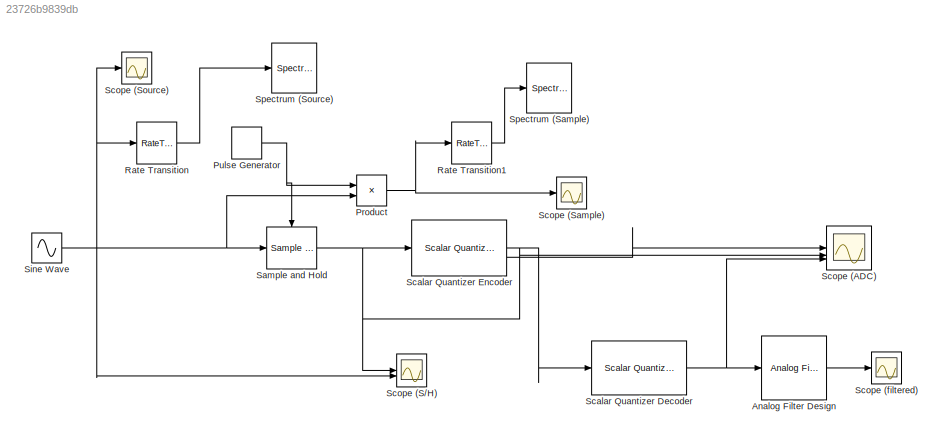
MODEL slx_23726b9839db
KIND model
CONFIG AbsTol = auto
CONFIG EnableMultiTasking = off
CONFIG FixedStep = auto
CONFIG MaxStep = auto
CONFIG MinStep = auto
CONFIG RelTol = 1e-3
CONFIG SampleTimeConstraint = Unconstrained
CONFIG SolverName = VariableStepAuto
CONFIG StartTime = 0.0
CONFIG StopTime = 10.0
BLOCK [Reference] Analog Filter Design  REF=dspfdesign/Analog
Filter Design
  SourceBlock = dspfdesign/Analog\nFilter Design
  SourceType = Analog Filter Design
BLOCK [Product] Product
BLOCK [DiscretePulseGenerator] Pulse Generator
  Period = 0.001/8
  PulseType = Time based
  PulseWidth = 50
BLOCK [RateTransition] Rate Transition
  OutPortSampleTime = 1e-5
BLOCK [RateTransition] Rate Transition1
  OutPortSampleTime = 1e-5
BLOCK [Reference] Sample and Hold  REF=dspsigops/Sample
and Hold
  SourceBlock = dspsigops/Sample\nand Hold
  SourceType = Sample and Hold
BLOCK [Reference] Scalar Quantizer Decoder  REF=dspquant2/Scalar Quantizer
Decoder
  SourceBlock = dspquant2/Scalar Quantizer\nDecoder
  SourceType = Scalar Quantizer Decoder
BLOCK [Reference] Scalar Quantizer Encoder  REF=dspquant2/Scalar Quantizer
Encoder
  SourceBlock = dspquant2/Scalar Quantizer\nEncoder
  SourceType = Scalar Quantizer Encoder
BLOCK [Scope] Scope (ADC)
  Floating = off
  NumInputPorts = 3
  ScopeSpecificationString = Simulink.scopes.TimeScopeBlockCfg('CurrentConfiguration', extmgr.ConfigurationSet(extmgr.Configuration('Core','General UI',true),extmgr.Configuration('Core','Source UI',true),extmgr.Configuration('Sources','WiredSimulink',true,'DataLoggingVariableName','ScopeData1'),extmgr.Configuration('Visuals','Time Domain',true,'SerializedDisplays',{struct('MinYLimReal','-2.5','MaxYLimReal','2.5','YLabelReal',...<+1648ch>
BLOCK [Scope] Scope (S//H)
  Floating = off
  NumInputPorts = 2
  ScopeSpecificationString = Simulink.scopes.TimeScopeBlockCfg('CurrentConfiguration', extmgr.ConfigurationSet(extmgr.Configuration('Core','General UI',true),extmgr.Configuration('Core','Source UI',true),extmgr.Configuration('Sources','WiredSimulink',true,'DataLoggingVariableName','ScopeData2'),extmgr.Configuration('Visuals','Time Domain',true,'SerializedDisplays',{struct('MinYLimReal','-2.5','MaxYLimReal','2.5','YLabelReal',...<+1499ch>
BLOCK [Scope] Scope (Sample)
  Floating = off
  NumInputPorts = 1
  ScopeSpecificationString = Simulink.scopes.TimeScopeBlockCfg('CurrentConfiguration', extmgr.ConfigurationSet(extmgr.Configuration('Core','General UI',true),extmgr.Configuration('Core','Source UI',true),extmgr.Configuration('Sources','WiredSimulink',true,'DataLoggingVariableName','ScopeData4'),extmgr.Configuration('Visuals','Time Domain',true,'SerializedDisplays',{struct('MinYLimReal','-2.5','MaxYLimReal','2.5','YLabelReal',...<+1431ch>
BLOCK [Scope] Scope (Source)
  Floating = off
  NumInputPorts = 1
  ScopeSpecificationString = Simulink.scopes.TimeScopeBlockCfg('CurrentConfiguration', extmgr.ConfigurationSet(extmgr.Configuration('Core','General UI',true),extmgr.Configuration('Core','Source UI',true),extmgr.Configuration('Sources','WiredSimulink',true),extmgr.Configuration('Visuals','Time Domain',true),extmgr.Configuration('Tools','Plot Navigation',true),extmgr.Configuration('Tools','Measurements',true)),'Version','2024a'...<+1ch>
BLOCK [Scope] Scope (filtered)
  Floating = off
  NumInputPorts = 1
  ScopeSpecificationString = Simulink.scopes.TimeScopeBlockCfg('CurrentConfiguration', extmgr.ConfigurationSet(extmgr.Configuration('Core','General UI',true),extmgr.Configuration('Core','Source UI',true),extmgr.Configuration('Sources','WiredSimulink',true,'DataLoggingVariableName','ScopeData3'),extmgr.Configuration('Visuals','Time Domain',true),extmgr.Configuration('Tools','Plot Navigation',true),extmgr.Configuration('Tools',...<+40ch>
BLOCK [Sin] Sine Wave
  Amplitude = 2
  Frequency = 500*2*pi
  SampleTime = 0
BLOCK [SpectrumAnalyzer] Spectrum (Sample)
  GraphicalSettings = {"GraphicalSettings":{"Style":{"BackgroundColor":[0.12941176470588237,0.12941176470588237,0.12941176470588237],"AxesColor":[0.07058823529411765,0.07058823529411765,0.07058823529411765],"LabelsColor":[0.8509803921568627,0.8509803921568627,0.8509803921568627],"PreserveColors":false,"Visible":[true],"LineStyle":["-"],"LineColor":[[1,0.9098039215686274,0.39215686274509803]],"LineWidth":[1.5],"Marker":...<+946ch>
  ScopeFrameLocation = window
  Span = 99999.99999999999
  StartFrequency = -49999.99999999999
  StopFrequency = 49999.99999999999
  WasSavedAsWebScope = on
  WindowPosition = [-36.000000,-78.000000,1099.000000,596.000000,]
  YLimits = [-229.38580018,52.50960302]
BLOCK [SpectrumAnalyzer] Spectrum (Source) 
  GraphicalSettings = {"GraphicalSettings":{"Style":{"BackgroundColor":[0.12941176470588237,0.12941176470588237,0.12941176470588237],"AxesColor":[0.07058823529411765,0.07058823529411765,0.07058823529411765],"LabelsColor":[0.8509803921568627,0.8509803921568627,0.8509803921568627],"PreserveColors":false,"Visible":[true],"LineStyle":["-"],"LineColor":[[1,0.9098039215686274,0.39215686274509803]],"LineWidth":[1.5],"Marker":...<+946ch>
  ScopeFrameLocation = window
  WasSavedAsWebScope = on
  WindowPosition = [-7.000000,-27.000000,1099.000000,596.000000,]
  YLimits = [-262.76280778,62.52919623]
LINE Analog Filter Design:1 -> Scope (filtered):1
NET Product:1 -> Rate Transition1:1, Scope (Sample):1
NET Pulse Generator:1 -> Product:1, Sample and Hold:trigger
LINE Rate Transition1:1 -> Spectrum (Sample):1
LINE Rate Transition:1 -> Spectrum (Source) :1
NET Sample and Hold:1 -> Scalar Quantizer Encoder:1, Scope (ADC):2, Scope (S//H):1
NET Scalar Quantizer Decoder:1 -> Analog Filter Design:1, Scope (ADC):3
LINE Scalar Quantizer Encoder:1 -> Scalar Quantizer Decoder:1
LINE Scalar Quantizer Encoder:2 -> Scope (ADC):1
NET Sine Wave:1 -> Product:2, Rate Transition:1, Sample and Hold:1, Scope (S//H):2, Scope (Source):1
note: NET lines group one-source signal fan-out (src -> all destinations, sorted); 1:1 wires keep LINE
